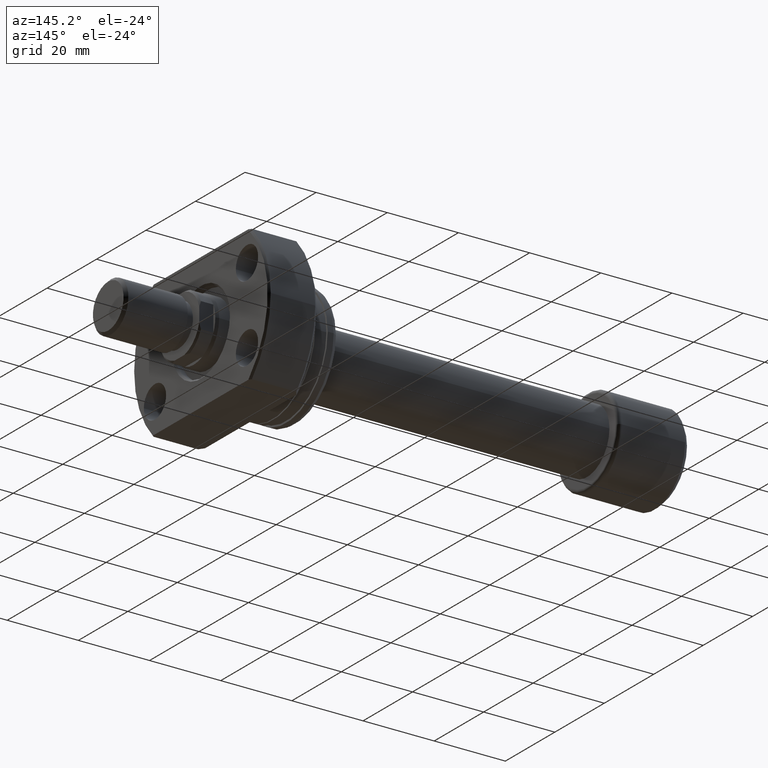
[diagram: clean part render]
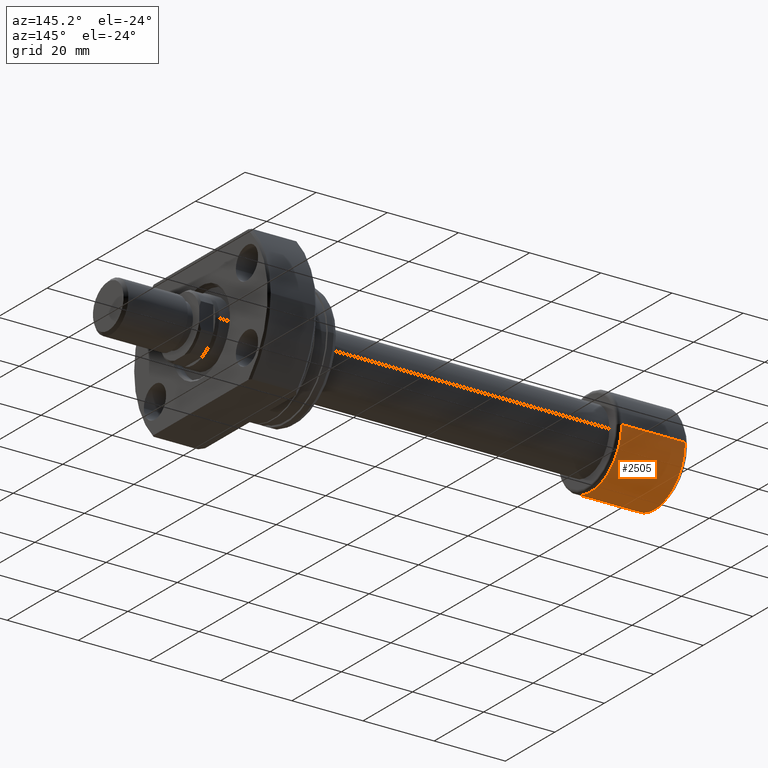
[diagram: same view with one face highlighted and labeled with its STEP entity id]
A machine part, auxiliary view. The second image highlights one B-rep face of the part: STEP entity #2505.
In plain terms, the highlighted cylindrical surface (partial cylindrical patch) has radius 12.5 mm, axis along (-1, -0, -0).
Its self-contained STEP definition (entity closure, byte-faithful):
#40 = VERTEX_POINT ( 'NONE', #443 ) ;
#233 = LINE ( 'NONE', #508, #2601 ) ;
#289 = CIRCLE ( 'NONE', #2250, 12.50000000000000000 ) ;
#382 = CARTESIAN_POINT ( 'NONE',  ( 1.500000000000001332, 12.50000000000000000, 0.000000000000000000 ) ) ;
#443 = CARTESIAN_POINT ( 'NONE',  ( 19.39999999999999503, -12.50000000000000000, 0.000000000000000000 ) ) ;
#508 = CARTESIAN_POINT ( 'NONE',  ( 1.336927902586332490E-16, -12.50000000000000000, 0.000000000000000000 ) ) ;
#572 = ORIENTED_EDGE ( 'NONE', *, *, #791, .F. ) ;
#598 = CARTESIAN_POINT ( 'NONE',  ( 19.39999999999999503, 12.50000000000000000, 1.530808498934191521E-15 ) ) ;
#609 = CARTESIAN_POINT ( 'NONE',  ( 1.500000000000001776, -12.50000000000000000, 1.530808498934191521E-15 ) ) ;
#680 = EDGE_CURVE ( 'NONE', #40, #3019, #233, .T. ) ;
#791 = EDGE_CURVE ( 'NONE', #2141, #1630, #2877, .T. ) ;
#907 = FACE_OUTER_BOUND ( 'NONE', #3356, .T. ) ;
#929 = ORIENTED_EDGE ( 'NONE', *, *, #680, .T. ) ;
#1281 = ORIENTED_EDGE ( 'NONE', *, *, #1565, .F. ) ;
#1357 = CARTESIAN_POINT ( 'NONE',  ( 1.500000000000001554, 1.604313483103600319E-17, 0.000000000000000000 ) ) ;
#1565 = EDGE_CURVE ( 'NONE', #1630, #3019, #289, .T. ) ;
#1630 = VERTEX_POINT ( 'NONE', #382 ) ;
#1981 = DIRECTION ( 'NONE',  ( -1.000000000000000000, -1.069542322069065801E-17, -0.000000000000000000 ) ) ;
#2041 = CYLINDRICAL_SURFACE ( 'NONE', #2288, 12.50000000000000000 ) ;
#2130 = DIRECTION ( 'NONE',  ( 0.000000000000000000, -1.000000000000000000, 0.000000000000000000 ) ) ;
#2141 = VERTEX_POINT ( 'NONE', #598 ) ;
#2250 = AXIS2_PLACEMENT_3D ( 'NONE', #1357, #1981, #2816 ) ;
#2288 = AXIS2_PLACEMENT_3D ( 'NONE', #3187, #2342, #3489 ) ;
#2342 = DIRECTION ( 'NONE',  ( -1.000000000000000000, -1.069542322069065801E-17, -0.000000000000000000 ) ) ;
#2468 = AXIS2_PLACEMENT_3D ( 'NONE', #3273, #2922, #2130 ) ;
#2505 = ADVANCED_FACE ( 'NONE', ( #907 ), #2041, .T. ) ;
#2601 = VECTOR ( 'NONE', #2810, 1000.000000000000000 ) ;
#2765 = EDGE_CURVE ( 'NONE', #2141, #40, #2950, .T. ) ;
#2810 = DIRECTION ( 'NONE',  ( -1.000000000000000000, -1.069542322069065801E-17, -0.000000000000000000 ) ) ;
#2816 = DIRECTION ( 'NONE',  ( 1.734723475976807094E-17, -1.000000000000000000, 0.000000000000000000 ) ) ;
#2817 = ORIENTED_EDGE ( 'NONE', *, *, #2765, .T. ) ;
#2847 = CARTESIAN_POINT ( 'NONE',  ( -1.336927902586332490E-16, 12.50000000000000000, 1.530808498934191521E-15 ) ) ;
#2877 = LINE ( 'NONE', #2847, #2908 ) ;
#2908 = VECTOR ( 'NONE', #3499, 1000.000000000000000 ) ;
#2922 = DIRECTION ( 'NONE',  ( -1.000000000000000000, -1.069542322069065801E-17, -0.000000000000000000 ) ) ;
#2950 = CIRCLE ( 'NONE', #2468, 12.50000000000000000 ) ;
#3019 = VERTEX_POINT ( 'NONE', #609 ) ;
#3187 = CARTESIAN_POINT ( 'NONE',  ( 0.000000000000000000, 0.000000000000000000, 0.000000000000000000 ) ) ;
#3273 = CARTESIAN_POINT ( 'NONE',  ( 19.39999999999999503, 2.074912104813986935E-16, 0.000000000000000000 ) ) ;
#3356 = EDGE_LOOP ( 'NONE', ( #572, #2817, #929, #1281 ) ) ;
#3489 = DIRECTION ( 'NONE',  ( 1.069542322069065955E-17, -1.000000000000000000, 0.000000000000000000 ) ) ;
#3499 = DIRECTION ( 'NONE',  ( -1.000000000000000000, -1.069542322069065801E-17, -0.000000000000000000 ) ) ;